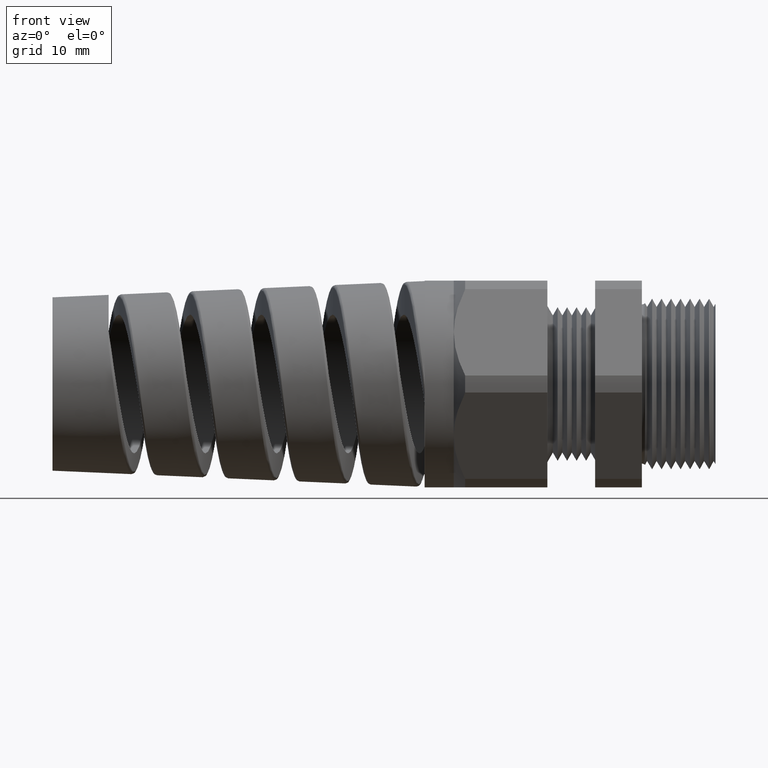
[diagram: clean part render]
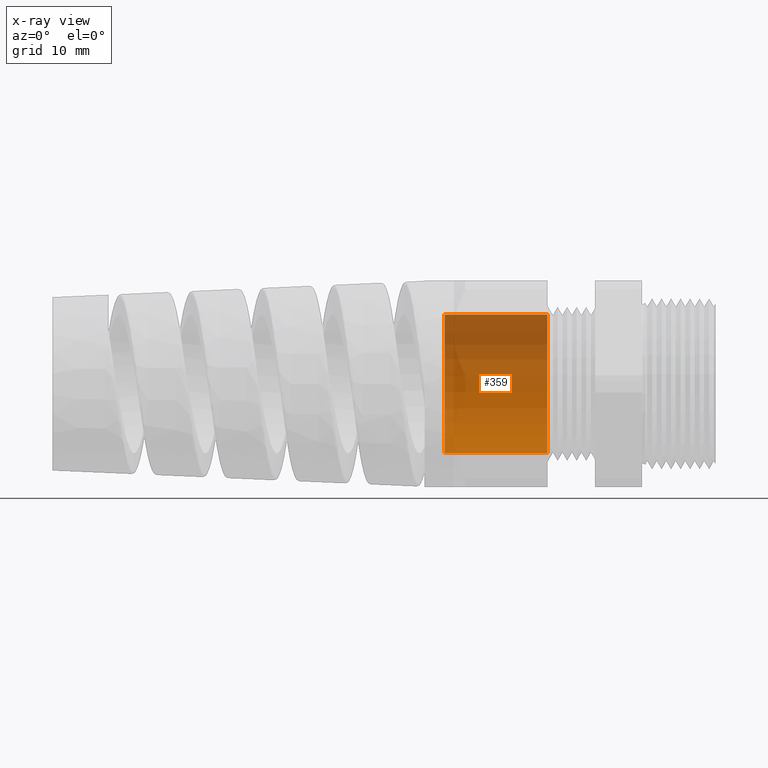
[diagram: x-ray — body ghosted, one internal face saturated and labeled with its STEP entity id]
A machine part, front view, then the same camera in x-ray: the body is ghosted and one INTERNAL B-rep face — a face not visible from any outside direction — is saturated and labeled: STEP entity #359.
In plain terms, the highlighted cylindrical surface (partial cylindrical patch) has radius 7.4168 mm, axis along (1, 0, 0).
Its self-contained STEP definition (entity closure, byte-faithful):
#21 = VERTEX_POINT ( 'NONE', #1496 ) ;
#354 = EDGE_LOOP ( 'NONE', ( #361, #8755, #8751, #8735 ) ) ;
#359 = ADVANCED_FACE ( 'NONE', ( #1991 ), #1990, .T. ) ;
#361 = ORIENTED_EDGE ( 'NONE', *, *, #369, .T. ) ;
#369 = EDGE_CURVE ( 'NONE', #21, #370, #1968, .T. ) ;
#370 = VERTEX_POINT ( 'NONE', #1959 ) ;
#1496 = CARTESIAN_POINT ( 'NONE',  ( -1.140000000000000100, 0.0000000000000000000, -0.2919999999999999300 ) ) ;
#1959 = CARTESIAN_POINT ( 'NONE',  ( -1.140000000000000100, 3.575968653510270800E-017, 0.2919999999999999300 ) ) ;
#1960 = DIRECTION ( 'NONE',  ( 0.0000000000000000000, 0.0000000000000000000, -1.000000000000000000 ) ) ;
#1961 = DIRECTION ( 'NONE',  ( 1.000000000000000000, 0.0000000000000000000, 0.0000000000000000000 ) ) ;
#1962 = CARTESIAN_POINT ( 'NONE',  ( -1.140000000000000100, 0.0000000000000000000, 0.0000000000000000000 ) ) ;
#1963 = AXIS2_PLACEMENT_3D ( 'NONE', #1962, #1961, #1960 ) ;
#1968 = CIRCLE ( 'NONE', #1963, 0.2919999999999999300 ) ;
#1970 = DIRECTION ( 'NONE',  ( 0.0000000000000000000, 0.0000000000000000000, -1.000000000000000000 ) ) ;
#1971 = DIRECTION ( 'NONE',  ( 1.000000000000000000, 0.0000000000000000000, 0.0000000000000000000 ) ) ;
#1972 = CARTESIAN_POINT ( 'NONE',  ( 0.09602717987635048200, 0.0000000000000000000, 0.0000000000000000000 ) ) ;
#1988 = AXIS2_PLACEMENT_3D ( 'NONE', #1972, #1971, #1970 ) ;
#1990 = CYLINDRICAL_SURFACE ( 'NONE', #1988, 0.2919999999999999300 ) ;
#1991 = FACE_OUTER_BOUND ( 'NONE', #354, .T. ) ;
#6041 = CARTESIAN_POINT ( 'NONE',  ( -0.7075590551181100100, 0.0000000000000000000, -0.2919999999999999300 ) ) ;
#6055 = DIRECTION ( 'NONE',  ( 1.000000000000000000, 0.0000000000000000000, 0.0000000000000000000 ) ) ;
#6056 = VECTOR ( 'NONE', #6055, 39.37007874015748100 ) ;
#6057 = CARTESIAN_POINT ( 'NONE',  ( 0.09602717987635048200, 3.575968653510270800E-017, 0.2919999999999999300 ) ) ;
#6058 = LINE ( 'NONE', #6057, #6056 ) ;
#6059 = DIRECTION ( 'NONE',  ( 0.0000000000000000000, 0.0000000000000000000, -1.000000000000000000 ) ) ;
#6060 = DIRECTION ( 'NONE',  ( 1.000000000000000000, 0.0000000000000000000, 0.0000000000000000000 ) ) ;
#6061 = CARTESIAN_POINT ( 'NONE',  ( -0.7075590551181100100, 0.0000000000000000000, 0.0000000000000000000 ) ) ;
#6062 = AXIS2_PLACEMENT_3D ( 'NONE', #6061, #6060, #6059 ) ;
#6063 = CIRCLE ( 'NONE', #6062, 0.2919999999999999300 ) ;
#6064 = CARTESIAN_POINT ( 'NONE',  ( -0.7075590551181100100, 3.575968653510270800E-017, 0.2919999999999999300 ) ) ;
#6065 = DIRECTION ( 'NONE',  ( 1.000000000000000000, 0.0000000000000000000, 0.0000000000000000000 ) ) ;
#6066 = VECTOR ( 'NONE', #6065, 39.37007874015748100 ) ;
#6067 = CARTESIAN_POINT ( 'NONE',  ( 0.09602717987635048200, 0.0000000000000000000, -0.2919999999999999300 ) ) ;
#6068 = LINE ( 'NONE', #6067, #6066 ) ;
#8733 = VERTEX_POINT ( 'NONE', #6041 ) ;
#8735 = ORIENTED_EDGE ( 'NONE', *, *, #8750, .F. ) ;
#8750 = EDGE_CURVE ( 'NONE', #21, #8733, #6068, .T. ) ;
#8751 = ORIENTED_EDGE ( 'NONE', *, *, #8753, .F. ) ;
#8752 = VERTEX_POINT ( 'NONE', #6064 ) ;
#8753 = EDGE_CURVE ( 'NONE', #8733, #8752, #6063, .T. ) ;
#8754 = EDGE_CURVE ( 'NONE', #370, #8752, #6058, .T. ) ;
#8755 = ORIENTED_EDGE ( 'NONE', *, *, #8754, .T. ) ;